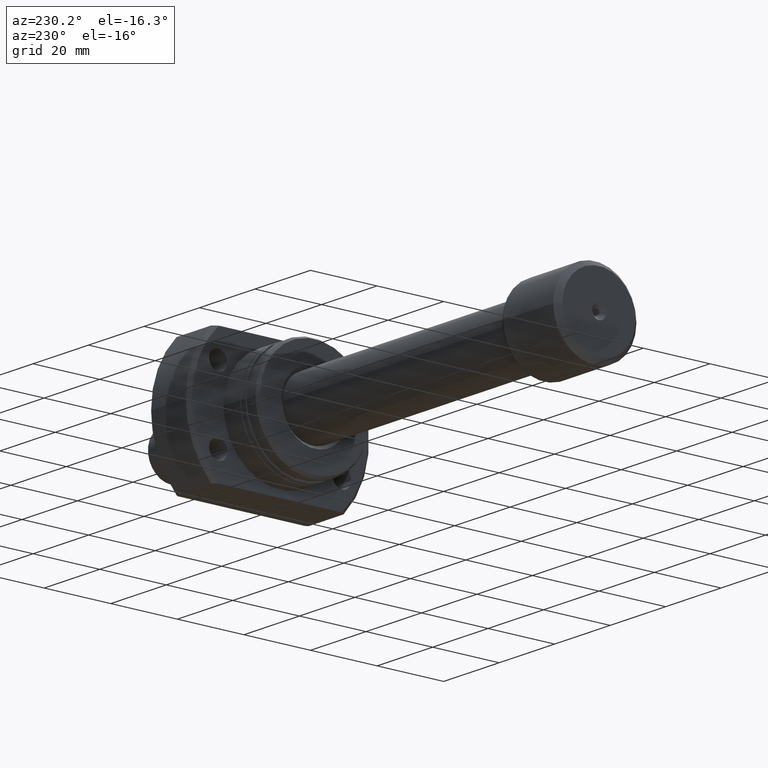
[diagram: clean part render]
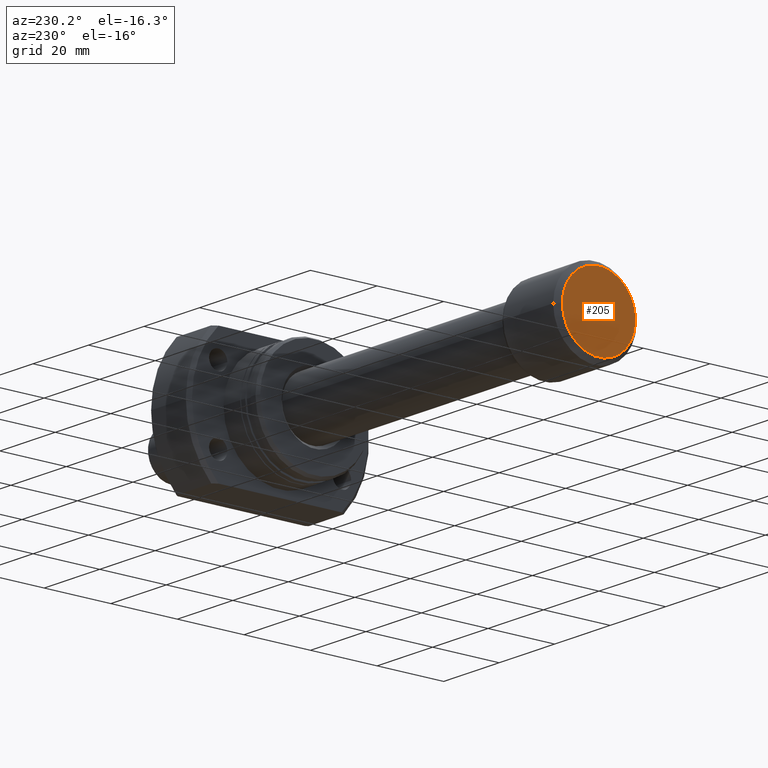
[diagram: same view with one face highlighted and labeled with its STEP entity id]
A machine part, auxiliary view. The second image highlights one B-rep face of the part: STEP entity #205.
In plain terms, the highlighted planar face has unit normal (-1, -0, 0).
Its self-contained STEP definition (entity closure, byte-faithful):
#101 = DIRECTION ( 'NONE',  ( 1.069542322069063644E-17, -1.000000000000000000, 0.000000000000000000 ) ) ;
#205 = ADVANCED_FACE ( 'NONE', ( #534, #1410 ), #3082, .T. ) ;
#215 = AXIS2_PLACEMENT_3D ( 'NONE', #3402, #1443, #2569 ) ;
#311 = DIRECTION ( 'NONE',  ( 1.069542322069065647E-17, -1.000000000000000000, 0.000000000000000000 ) ) ;
#376 = CARTESIAN_POINT ( 'NONE',  ( 6.147309118172456842E-16, 0.000000000000000000, 0.000000000000000000 ) ) ;
#442 = EDGE_LOOP ( 'NONE', ( #651, #985 ) ) ;
#504 = ORIENTED_EDGE ( 'NONE', *, *, #2498, .T. ) ;
#534 = FACE_BOUND ( 'NONE', #556, .T. ) ;
#549 = ORIENTED_EDGE ( 'NONE', *, *, #3632, .T. ) ;
#556 = EDGE_LOOP ( 'NONE', ( #549, #504 ) ) ;
#651 = ORIENTED_EDGE ( 'NONE', *, *, #2601, .T. ) ;
#667 = DIRECTION ( 'NONE',  ( 1.069542322069063644E-17, -1.000000000000000000, 0.000000000000000000 ) ) ;
#837 = CARTESIAN_POINT ( 'NONE',  ( 6.147309118172456842E-16, 0.000000000000000000, 2.075000000000021494 ) ) ;
#985 = ORIENTED_EDGE ( 'NONE', *, *, #3472, .T. ) ;
#1149 = VERTEX_POINT ( 'NONE', #1396 ) ;
#1218 = DIRECTION ( 'NONE',  ( 1.000000000000000000, 1.069542322069065801E-17, 0.000000000000000000 ) ) ;
#1342 = AXIS2_PLACEMENT_3D ( 'NONE', #3606, #1667, #1703 ) ;
#1396 = CARTESIAN_POINT ( 'NONE',  ( 1.111812168206894135E-15, 11.00000000000000178, 0.000000000000000000 ) ) ;
#1410 = FACE_OUTER_BOUND ( 'NONE', #442, .T. ) ;
#1443 = DIRECTION ( 'NONE',  ( -1.000000000000000000, -1.069542322069065801E-17, -0.000000000000000000 ) ) ;
#1505 = CARTESIAN_POINT ( 'NONE',  ( 6.147309118172456842E-16, 0.000000000000000000, 0.000000000000000000 ) ) ;
#1667 = DIRECTION ( 'NONE',  ( -1.000000000000000000, -1.069542322069065801E-17, 0.000000000000000000 ) ) ;
#1703 = DIRECTION ( 'NONE',  ( 1.069542322069065801E-17, -1.000000000000000000, 0.000000000000000000 ) ) ;
#1766 = CIRCLE ( 'NONE', #2052, 2.075000000000021494 ) ;
#1797 = CARTESIAN_POINT ( 'NONE',  ( 1.347111479062088602E-15, -11.00000000000000178, 1.438959988998140160E-15 ) ) ;
#1805 = VERTEX_POINT ( 'NONE', #837 ) ;
#1942 = CIRCLE ( 'NONE', #2297, 2.075000000000021494 ) ;
#2052 = AXIS2_PLACEMENT_3D ( 'NONE', #376, #2645, #101 ) ;
#2168 = AXIS2_PLACEMENT_3D ( 'NONE', #2821, #2543, #311 ) ;
#2297 = AXIS2_PLACEMENT_3D ( 'NONE', #1505, #1218, #667 ) ;
#2498 = EDGE_CURVE ( 'NONE', #2794, #1805, #1766, .T. ) ;
#2543 = DIRECTION ( 'NONE',  ( -1.000000000000000000, -1.069542322069065801E-17, -0.000000000000000000 ) ) ;
#2569 = DIRECTION ( 'NONE',  ( 1.069542322069065647E-17, -1.000000000000000000, 0.000000000000000000 ) ) ;
#2601 = EDGE_CURVE ( 'NONE', #1149, #3636, #2835, .T. ) ;
#2645 = DIRECTION ( 'NONE',  ( 1.000000000000000000, 1.069542322069065801E-17, 0.000000000000000000 ) ) ;
#2794 = VERTEX_POINT ( 'NONE', #3657 ) ;
#2821 = CARTESIAN_POINT ( 'NONE',  ( 1.229461823634491368E-15, 1.314961453745302249E-32, 0.000000000000000000 ) ) ;
#2835 = CIRCLE ( 'NONE', #215, 11.00000000000000178 ) ;
#3082 = PLANE ( 'NONE',  #1342 ) ;
#3253 = CIRCLE ( 'NONE', #2168, 11.00000000000000178 ) ;
#3402 = CARTESIAN_POINT ( 'NONE',  ( 1.229461823634491368E-15, 1.314961453745302249E-32, 0.000000000000000000 ) ) ;
#3472 = EDGE_CURVE ( 'NONE', #3636, #1149, #3253, .T. ) ;
#3606 = CARTESIAN_POINT ( 'NONE',  ( 6.147309118172456842E-16, 6.574807268726511244E-33, 0.000000000000000000 ) ) ;
#3632 = EDGE_CURVE ( 'NONE', #1805, #2794, #1942, .T. ) ;
#3636 = VERTEX_POINT ( 'NONE', #1797 ) ;
#3657 = CARTESIAN_POINT ( 'NONE',  ( 6.147309118172456842E-16, 2.541142108230784202E-16, -2.075000000000021494 ) ) ;